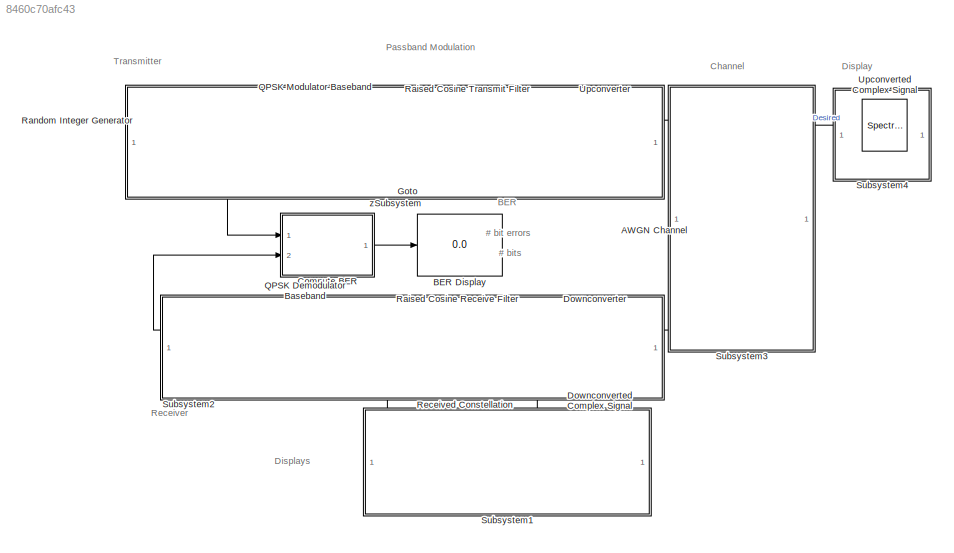
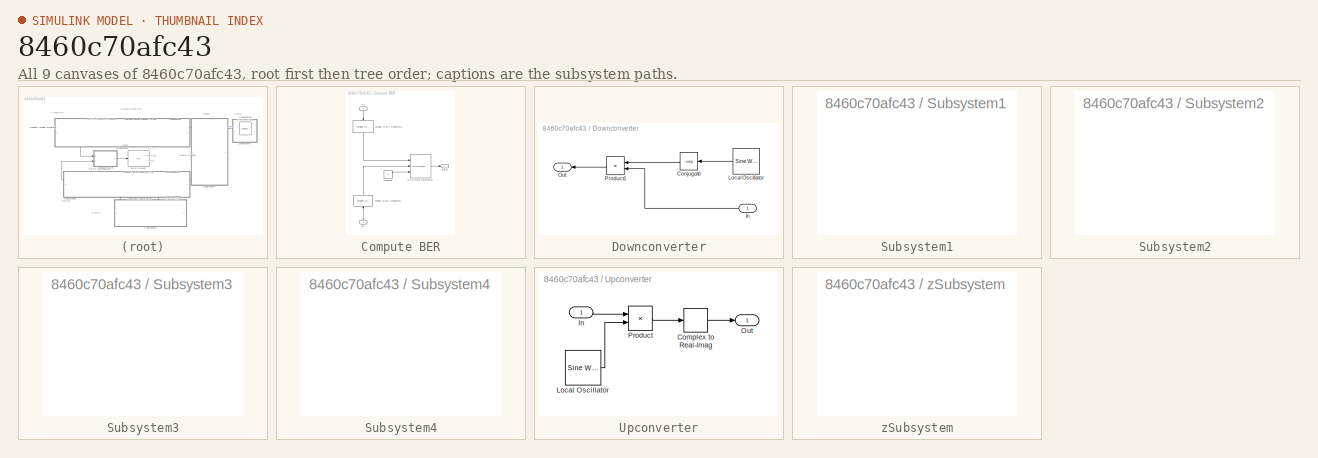
[diagram: thumbnail index - all 9 canvases of the model, root first then tree order]
MODEL slx_8460c70afc43
KIND model
CONFIG AbsTol = auto
CONFIG EnableMultiTasking = on
CONFIG FixedStep = auto
CONFIG InitFcn = commpassbandmodParams.Fc = 2.5e6;\ncommpassbandmodParams.F1 = commpassbandmodParams.Fc/3+.5e5;\n
CONFIG MaxStep = auto
CONFIG MinStep = auto
CONFIG RelTol = 1e-3
CONFIG SampleTimeConstraint = Unconstrained
CONFIG SolverName = VariableStepDiscrete
CONFIG StartTime = 0.0
CONFIG StopTime = 0.02
BLOCK [Reference] AWGN Channel  REF=commchan3/AWGN
Channel
  NameLocation = right
  Ports = [1, 1]
  SourceBlock = commchan3/AWGN\nChannel
  SourceProductBaseCode = CM
  SourceType = AWGN Channel
  UserDataPersistent = on
BLOCK [Display] BER Display
  Decimation = 1
  Ports = [1]
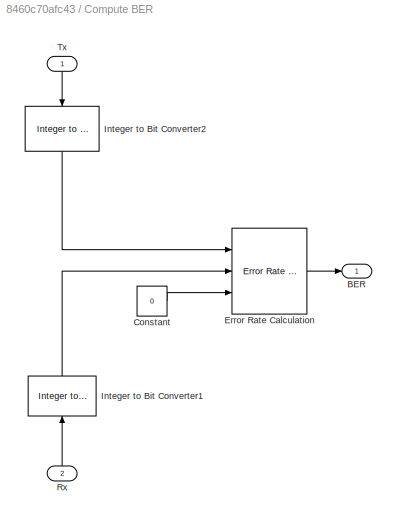
BLOCK [SubSystem] Compute BER
  Ports = [2, 1]
  RequestExecContextInheritance = off
BLOCK [Outport] Compute BER/BER
  VectorParamsAs1DForOutWhenUnconnected = off
BLOCK [Constant] Compute BER/Constant
  SampleTime = 1e-4
  Value = 0
BLOCK [Reference] Compute BER/Error Rate Calculation  REF=commsink2/Error Rate
Calculation
  Ports = [3, 1]
  SourceBlock = commsink2/Error Rate\nCalculation
  SourceProductBaseCode = CM
  SourceType = Error Rate Calculation
BLOCK [Reference] Compute BER/Integer to Bit Converter1  REF=commutil2/Integer to Bit
Converter
  NameLocation = left
  Ports = [1, 1]
  SourceBlock = commutil2/Integer to Bit\nConverter
  SourceProductBaseCode = CM
  SourceType = Integer to Bit Converter
BLOCK [Reference] Compute BER/Integer to Bit Converter2  REF=commutil2/Integer to Bit
Converter
  NameLocation = right
  Ports = [1, 1]
  SourceBlock = commutil2/Integer to Bit\nConverter
  SourceProductBaseCode = CM
  SourceType = Integer to Bit Converter
BLOCK [Inport] Compute BER/Rx
  NameLocation = right
  Port = 2
BLOCK [Inport] Compute BER/Tx
  NameLocation = right
BLOCK [SpectrumAnalyzer] Downconverted Complex Signal
  Ports = [1]
  ScopeSpecificationString = spbscopes.SpectrumAnalyzerBlockCfg('CurrentConfiguration', extmgr.ConfigurationSet(extmgr.Configuration('Core','General UI',true),extmgr.Configuration('Core','Source UI',true),extmgr.Configuration('Sources','WiredSimulink',true),extmgr.Configuration('Visuals','Spectrum',true,'AxesProperties',struct('Color',{[0 0 0],[0 0 0]},'XColor',{[0.686274509803922 0.686274509803922 0.686274509803922],[0.68627...<+2210ch>
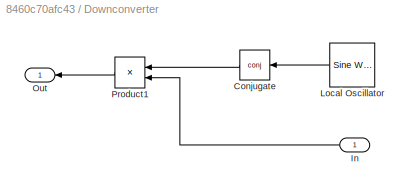
BLOCK [SubSystem] Downconverter
  Ports = [1, 1]
  RequestExecContextInheritance = off
BLOCK [Math] Downconverter/Conjugate
  NameLocation = top
  Operator = conj
  Ports = [1, 1]
  SignedPower = on
BLOCK [Inport] Downconverter/In
  NameLocation = top
BLOCK [Reference] Downconverter/Local Oscillator  REF=dspsrcs4/Sine Wave
  NameLocation = top
  Ports = [0, 1]
  SourceBlock = dspsrcs4/Sine Wave
  SourceProductBaseCode = DS
  SourceType = Sine Wave
BLOCK [Outport] Downconverter/Out
  NameLocation = top
  VectorParamsAs1DForOutWhenUnconnected = off
BLOCK [Product] Downconverter/Product1
  Ports = [2, 1]
  RndMeth = Zero
BLOCK [Goto] Goto
  GotoTag = TxSym
  TagVisibility = global
BLOCK [Reference] QPSK Demodulator Baseband  REF=commdigbbndpm3/QPSK
Demodulator
Baseband
  Ports = [1, 1]
  SourceBlock = commdigbbndpm3/QPSK\nDemodulator\nBaseband
  SourceProductBaseCode = CM
  SourceType = QPSK Demodulator Baseband
BLOCK [Reference] QPSK Modulator Baseband  REF=commdigbbndpm3/QPSK
Modulator
Baseband
  Ports = [1, 1]
  SourceBlock = commdigbbndpm3/QPSK\nModulator\nBaseband
  SourceProductBaseCode = CM
  SourceType = QPSK Modulator Baseband
BLOCK [Reference] Raised Cosine Receive Filter  REF=commfilt2/Raised Cosine
Receive Filter
  Ports = [1, 1]
  SourceBlock = commfilt2/Raised Cosine\nReceive Filter
  SourceProductBaseCode = CM
  SourceType = Raised Cosine Receive Filter
  UserDataPersistent = on
BLOCK [Reference] Raised Cosine Transmit Filter  REF=commfilt2/Raised Cosine
Transmit Filter
  Ports = [1, 1]
  SourceBlock = commfilt2/Raised Cosine\nTransmit Filter
  SourceProductBaseCode = CM
  SourceType = Raised Cosine Transmit Filter
  UserDataPersistent = on
BLOCK [Reference] Random Integer Generator  REF=commrandsrc3/Random Integer
Generator
  Ports = [0, 1]
  SourceBlock = commrandsrc3/Random Integer\nGenerator
  SourceProductBaseCode = CM
  SourceType = Random Integer Generator
BLOCK [ConstellationDiagram] Received Constellation
  Ports = [1]
  ScopeSpecificationString = comm.scopes.ConstellationDiagramBlockCfg('CurrentConfiguration', extmgr.ConfigurationSet(extmgr.Configuration('Core','General UI',true),extmgr.Configuration('Core','Source UI',true),extmgr.Configuration('Sources','WiredSimulink',true),extmgr.Configuration('Sources','File',false),extmgr.Configuration('Sources','Workspace',false),extmgr.Configuration('Sources','Streaming',false),extmgr.Configuration...<+1302ch>
  Tag = ScatterPlot
BLOCK [SubSystem] Subsystem1
  Ports = []
  RequestExecContextInheritance = off
BLOCK [SubSystem] Subsystem2
  Ports = []
  RequestExecContextInheritance = off
BLOCK [SubSystem] Subsystem3
  Ports = []
  RequestExecContextInheritance = off
BLOCK [SubSystem] Subsystem4
  Ports = []
  RequestExecContextInheritance = off
BLOCK [SpectrumAnalyzer] Upconverted Complex Signal
  Ports = [1]
  ScopeSpecificationString = spbscopes.SpectrumAnalyzerBlockCfg('CurrentConfiguration', extmgr.ConfigurationSet(extmgr.Configuration('Core','General UI',true),extmgr.Configuration('Core','Source UI',true),extmgr.Configuration('Sources','WiredSimulink',true),extmgr.Configuration('Visuals','Spectrum',true,'AxesProperties',struct('Color',{[0 0 0],[0 0 0]},'XColor',{[0.686274509803922 0.686274509803922 0.686274509803922],[0.68627...<+1929ch>
BLOCK [SubSystem] Upconverter
  Ports = [1, 1]
  RequestExecContextInheritance = off
BLOCK [ComplexToRealImag] Upconverter/Complex to Real-Imag
  Output = Real
  Ports = [1, 1]
BLOCK [Inport] Upconverter/In
BLOCK [Reference] Upconverter/Local Oscillator  REF=dspsrcs4/Sine Wave
  Ports = [0, 1]
  SourceBlock = dspsrcs4/Sine Wave
  SourceProductBaseCode = DS
  SourceType = Sine Wave
BLOCK [Outport] Upconverter/Out
  VectorParamsAs1DForOutWhenUnconnected = off
BLOCK [Product] Upconverter/Product
  Ports = [2, 1]
  RndMeth = Zero
BLOCK [SubSystem] zSubsystem
  Ports = []
  RequestExecContextInheritance = off
ANNOTATION (root): # bit errors
ANNOTATION (root): # bits
ANNOTATION (root): BER
ANNOTATION (root): Channel
ANNOTATION (root): Display
ANNOTATION (root): Displays
ANNOTATION (root): Passband Modulation
ANNOTATION (root): Receiver
ANNOTATION (root): Transmitter
LINE AWGN Channel:1 -> Downconverter:1
LINE Compute BER/Constant:1 -> Compute BER/Error Rate Calculation:3
LINE Compute BER/Error Rate Calculation:1 -> Compute BER/BER:1
LINE Compute BER/Integer to Bit Converter1:1 -> Compute BER/Error Rate Calculation:2
LINE Compute BER/Integer to Bit Converter2:1 -> Compute BER/Error Rate Calculation:1
LINE Compute BER/Rx:1 -> Compute BER/Integer to Bit Converter1:1
LINE Compute BER/Tx:1 -> Compute BER/Integer to Bit Converter2:1
LINE Compute BER:1 -> BER Display:1
LINE Downconverter/Conjugate:1 -> Downconverter/Product1:1
LINE Downconverter/In:1 -> Downconverter/Product1:2
LINE Downconverter/Local Oscillator:1 -> Downconverter/Conjugate:1
LINE Downconverter/Product1:1 -> Downconverter/Out:1
NET Downconverter:1 -> Downconverted Complex Signal:1, Raised Cosine Receive Filter:1
LINE QPSK Demodulator Baseband:1 -> Compute BER:2
NET QPSK Modulator Baseband:1 -> Goto:1, Raised Cosine Transmit Filter:1
NET Raised Cosine Receive Filter:1 -> QPSK Demodulator Baseband:1, Received Constellation:1
LINE Raised Cosine Transmit Filter:1 -> Upconverter:1
NET Random Integer Generator:1 -> Compute BER:1, QPSK Modulator Baseband:1
LINE Upconverter/Complex to Real-Imag:1 -> Upconverter/Out:1
LINE Upconverter/In:1 -> Upconverter/Product:1
LINE Upconverter/Local Oscillator:1 -> Upconverter/Product:2
LINE Upconverter/Product:1 -> Upconverter/Complex to Real-Imag:1
NET Upconverter:1 -> AWGN Channel:1, Upconverted Complex Signal:1
note: NET lines group one-source signal fan-out (src -> all destinations, sorted); 1:1 wires keep LINE
